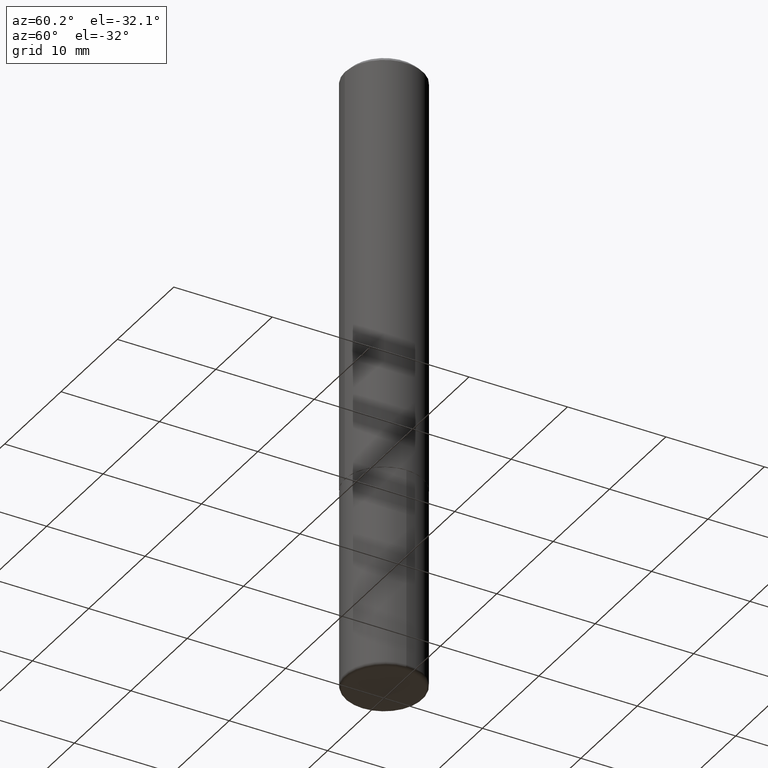
[diagram: clean part render]
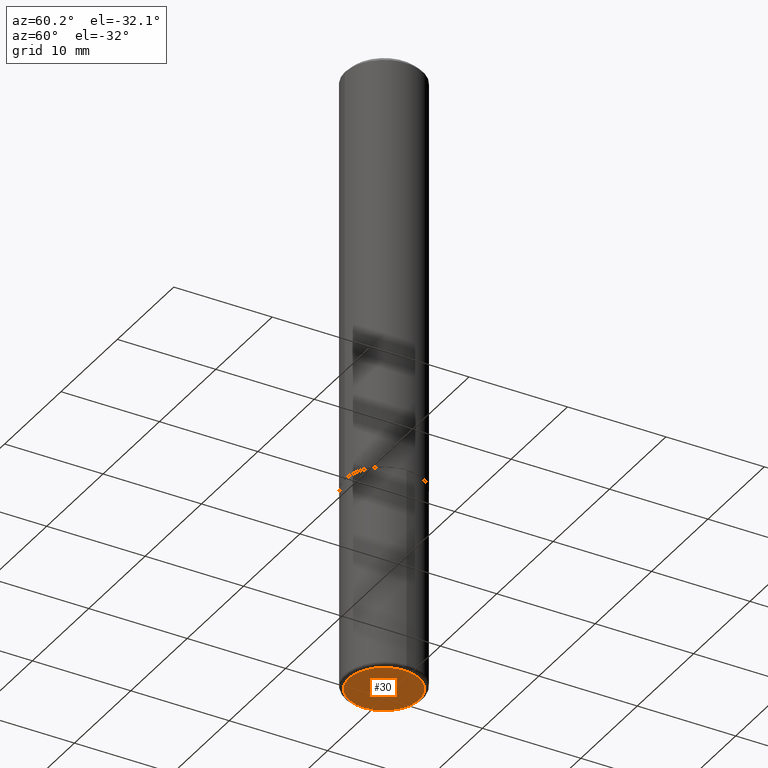
[diagram: same view with one face highlighted and labeled with its STEP entity id]
A machine part, auxiliary view. The second image highlights one B-rep face of the part: STEP entity #30.
In plain terms, the highlighted planar face has unit normal (0, -0, -1).
Its self-contained STEP definition (entity closure, byte-faithful):
#15 = EDGE_CURVE ( 'NONE', #256, #304, #79, .T. ) ;
#30 = ADVANCED_FACE ( 'NONE', ( #339 ), #355, .T. ) ;
#79 = CIRCLE ( 'NONE', #318, 0.1412499999999999867 ) ;
#93 = DIRECTION ( 'NONE',  ( -2.445468806185136597E-29, 3.491481338843145583E-15, 1.000000000000000000 ) ) ;
#97 = CARTESIAN_POINT ( 'NONE',  ( 6.113672015462840371E-29, -8.728703347107863365E-15, -2.499999999999999556 ) ) ;
#111 = CARTESIAN_POINT ( 'NONE',  ( 6.113672015462840371E-29, -8.728703347107863365E-15, -2.499999999999999556 ) ) ;
#140 = ORIENTED_EDGE ( 'NONE', *, *, #189, .F. ) ;
#145 = CARTESIAN_POINT ( 'NONE',  ( -0.1412499999999999867, -7.645584917623391438E-15, -2.499999999999999556 ) ) ;
#171 = CIRCLE ( 'NONE', #346, 0.1412499999999999867 ) ;
#181 = CARTESIAN_POINT ( 'NONE',  ( 1.286637735382378644E-28, 9.415550375444000163E-16, -2.500000000000000000 ) ) ;
#188 = EDGE_LOOP ( 'NONE', ( #403, #140 ) ) ;
#189 = EDGE_CURVE ( 'NONE', #304, #256, #171, .T. ) ;
#198 = DIRECTION ( 'NONE',  ( -2.445468806185136597E-29, 3.491481338843145583E-15, 1.000000000000000000 ) ) ;
#247 = DIRECTION ( 'NONE',  ( 1.000000000000000000, -6.982962677686270655E-15, 0.000000000000000000 ) ) ;
#256 = VERTEX_POINT ( 'NONE', #366 ) ;
#304 = VERTEX_POINT ( 'NONE', #145 ) ;
#312 = AXIS2_PLACEMENT_3D ( 'NONE', #181, #410, #340 ) ;
#313 = DIRECTION ( 'NONE',  ( 1.000000000000000000, -6.982962677686270655E-15, 0.000000000000000000 ) ) ;
#318 = AXIS2_PLACEMENT_3D ( 'NONE', #97, #93, #247 ) ;
#339 = FACE_OUTER_BOUND ( 'NONE', #188, .T. ) ;
#340 = DIRECTION ( 'NONE',  ( -1.000000000000000000, 6.982962677686265922E-15, -4.876176775795935793E-29 ) ) ;
#346 = AXIS2_PLACEMENT_3D ( 'NONE', #111, #198, #313 ) ;
#355 = PLANE ( 'NONE',  #312 ) ;
#366 = CARTESIAN_POINT ( 'NONE',  ( 0.1412499999999999867, -9.715046825331048380E-15, -2.499999999999999556 ) ) ;
#403 = ORIENTED_EDGE ( 'NONE', *, *, #15, .F. ) ;
#410 = DIRECTION ( 'NONE',  ( 2.438088387897960049E-29, -3.491481338843145188E-15, -1.000000000000000000 ) ) ;